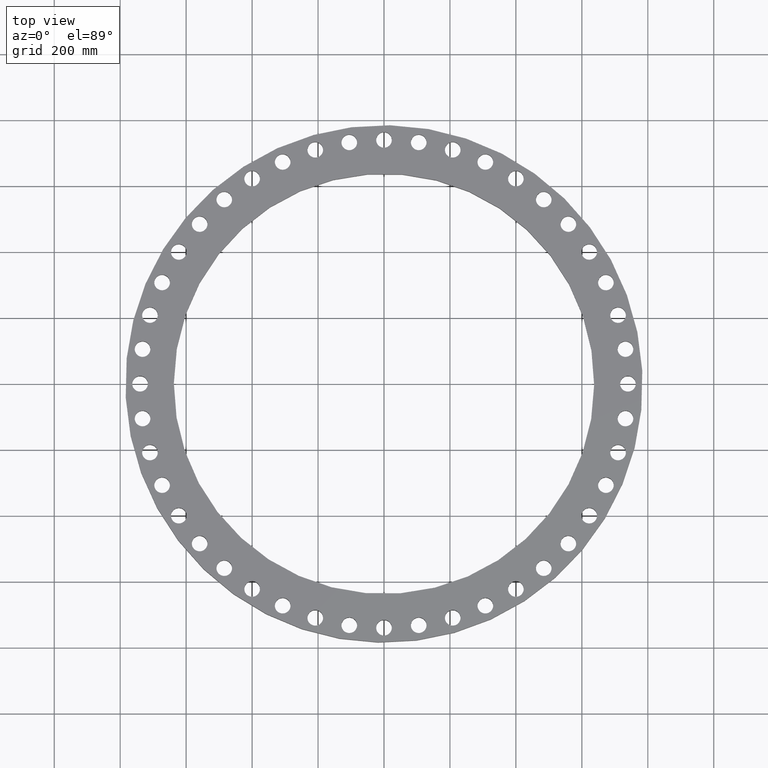
[diagram: clean part render]
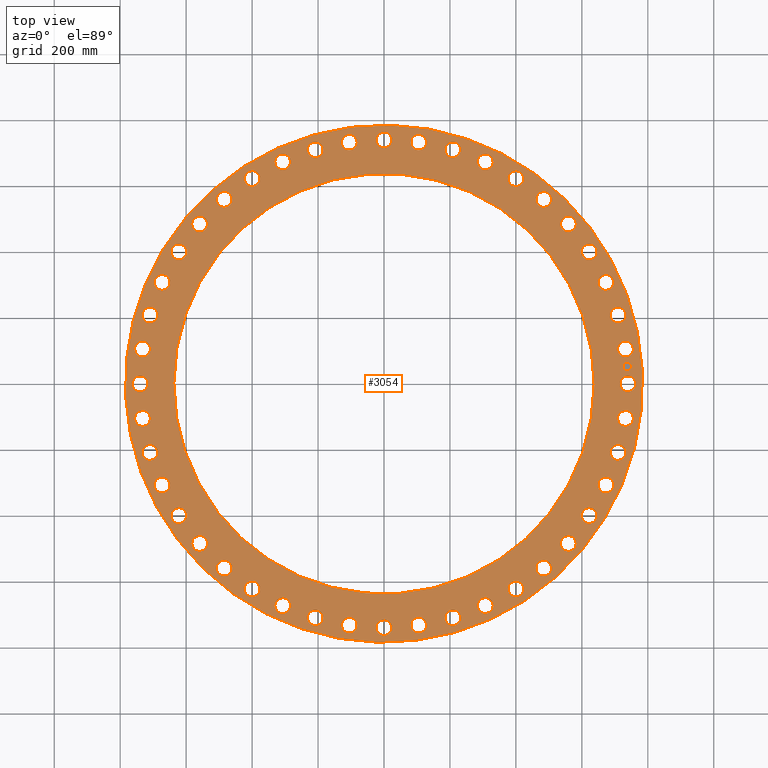
[diagram: same view with one face highlighted and labeled with its STEP entity id]
A machine part, top view. The second image highlights one B-rep face of the part: STEP entity #3054.
In plain terms, the highlighted planar face has unit normal (0, 0, 1).
Its self-contained STEP definition (entity closure, byte-faithful):
#65=AXIS2_PLACEMENT_3D('Circle Axis2P3D',#63,#64,$) ;
#82=AXIS2_PLACEMENT_3D('Circle Axis2P3D',#80,#81,$) ;
#108=AXIS2_PLACEMENT_3D('Circle Axis2P3D',#106,#107,$) ;
#134=AXIS2_PLACEMENT_3D('Circle Axis2P3D',#132,#133,$) ;
#179=AXIS2_PLACEMENT_3D('Circle Axis2P3D',#177,#178,$) ;
#196=AXIS2_PLACEMENT_3D('Circle Axis2P3D',#194,#195,$) ;
#1019=AXIS2_PLACEMENT_3D('Circle Axis2P3D',#1017,#1018,$) ;
#1031=AXIS2_PLACEMENT_3D('Circle Axis2P3D',#1029,#1030,$) ;
#1062=AXIS2_PLACEMENT_3D('Circle Axis2P3D',#1060,#1061,$) ;
#1074=AXIS2_PLACEMENT_3D('Circle Axis2P3D',#1072,#1073,$) ;
#1105=AXIS2_PLACEMENT_3D('Circle Axis2P3D',#1103,#1104,$) ;
#1117=AXIS2_PLACEMENT_3D('Circle Axis2P3D',#1115,#1116,$) ;
#1148=AXIS2_PLACEMENT_3D('Circle Axis2P3D',#1146,#1147,$) ;
#1160=AXIS2_PLACEMENT_3D('Circle Axis2P3D',#1158,#1159,$) ;
#1191=AXIS2_PLACEMENT_3D('Circle Axis2P3D',#1189,#1190,$) ;
#1203=AXIS2_PLACEMENT_3D('Circle Axis2P3D',#1201,#1202,$) ;
#1234=AXIS2_PLACEMENT_3D('Circle Axis2P3D',#1232,#1233,$) ;
#1246=AXIS2_PLACEMENT_3D('Circle Axis2P3D',#1244,#1245,$) ;
#1277=AXIS2_PLACEMENT_3D('Circle Axis2P3D',#1275,#1276,$) ;
#1289=AXIS2_PLACEMENT_3D('Circle Axis2P3D',#1287,#1288,$) ;
#1320=AXIS2_PLACEMENT_3D('Circle Axis2P3D',#1318,#1319,$) ;
#1332=AXIS2_PLACEMENT_3D('Circle Axis2P3D',#1330,#1331,$) ;
#1363=AXIS2_PLACEMENT_3D('Circle Axis2P3D',#1361,#1362,$) ;
#1375=AXIS2_PLACEMENT_3D('Circle Axis2P3D',#1373,#1374,$) ;
#1406=AXIS2_PLACEMENT_3D('Circle Axis2P3D',#1404,#1405,$) ;
#1418=AXIS2_PLACEMENT_3D('Circle Axis2P3D',#1416,#1417,$) ;
#1449=AXIS2_PLACEMENT_3D('Circle Axis2P3D',#1447,#1448,$) ;
#1461=AXIS2_PLACEMENT_3D('Circle Axis2P3D',#1459,#1460,$) ;
#1492=AXIS2_PLACEMENT_3D('Circle Axis2P3D',#1490,#1491,$) ;
#1504=AXIS2_PLACEMENT_3D('Circle Axis2P3D',#1502,#1503,$) ;
#1535=AXIS2_PLACEMENT_3D('Circle Axis2P3D',#1533,#1534,$) ;
#1547=AXIS2_PLACEMENT_3D('Circle Axis2P3D',#1545,#1546,$) ;
#1578=AXIS2_PLACEMENT_3D('Circle Axis2P3D',#1576,#1577,$) ;
#1590=AXIS2_PLACEMENT_3D('Circle Axis2P3D',#1588,#1589,$) ;
#1621=AXIS2_PLACEMENT_3D('Circle Axis2P3D',#1619,#1620,$) ;
#1633=AXIS2_PLACEMENT_3D('Circle Axis2P3D',#1631,#1632,$) ;
#1664=AXIS2_PLACEMENT_3D('Circle Axis2P3D',#1662,#1663,$) ;
#1676=AXIS2_PLACEMENT_3D('Circle Axis2P3D',#1674,#1675,$) ;
#1707=AXIS2_PLACEMENT_3D('Circle Axis2P3D',#1705,#1706,$) ;
#1719=AXIS2_PLACEMENT_3D('Circle Axis2P3D',#1717,#1718,$) ;
#1750=AXIS2_PLACEMENT_3D('Circle Axis2P3D',#1748,#1749,$) ;
#1762=AXIS2_PLACEMENT_3D('Circle Axis2P3D',#1760,#1761,$) ;
#1793=AXIS2_PLACEMENT_3D('Circle Axis2P3D',#1791,#1792,$) ;
#1805=AXIS2_PLACEMENT_3D('Circle Axis2P3D',#1803,#1804,$) ;
#1836=AXIS2_PLACEMENT_3D('Circle Axis2P3D',#1834,#1835,$) ;
#1848=AXIS2_PLACEMENT_3D('Circle Axis2P3D',#1846,#1847,$) ;
#1879=AXIS2_PLACEMENT_3D('Circle Axis2P3D',#1877,#1878,$) ;
#1891=AXIS2_PLACEMENT_3D('Circle Axis2P3D',#1889,#1890,$) ;
#1922=AXIS2_PLACEMENT_3D('Circle Axis2P3D',#1920,#1921,$) ;
#1934=AXIS2_PLACEMENT_3D('Circle Axis2P3D',#1932,#1933,$) ;
#1965=AXIS2_PLACEMENT_3D('Circle Axis2P3D',#1963,#1964,$) ;
#1977=AXIS2_PLACEMENT_3D('Circle Axis2P3D',#1975,#1976,$) ;
#2008=AXIS2_PLACEMENT_3D('Circle Axis2P3D',#2006,#2007,$) ;
#2020=AXIS2_PLACEMENT_3D('Circle Axis2P3D',#2018,#2019,$) ;
#2051=AXIS2_PLACEMENT_3D('Circle Axis2P3D',#2049,#2050,$) ;
#2063=AXIS2_PLACEMENT_3D('Circle Axis2P3D',#2061,#2062,$) ;
#2094=AXIS2_PLACEMENT_3D('Circle Axis2P3D',#2092,#2093,$) ;
#2106=AXIS2_PLACEMENT_3D('Circle Axis2P3D',#2104,#2105,$) ;
#2137=AXIS2_PLACEMENT_3D('Circle Axis2P3D',#2135,#2136,$) ;
#2149=AXIS2_PLACEMENT_3D('Circle Axis2P3D',#2147,#2148,$) ;
#2180=AXIS2_PLACEMENT_3D('Circle Axis2P3D',#2178,#2179,$) ;
#2192=AXIS2_PLACEMENT_3D('Circle Axis2P3D',#2190,#2191,$) ;
#2223=AXIS2_PLACEMENT_3D('Circle Axis2P3D',#2221,#2222,$) ;
#2235=AXIS2_PLACEMENT_3D('Circle Axis2P3D',#2233,#2234,$) ;
#2266=AXIS2_PLACEMENT_3D('Circle Axis2P3D',#2264,#2265,$) ;
#2278=AXIS2_PLACEMENT_3D('Circle Axis2P3D',#2276,#2277,$) ;
#2309=AXIS2_PLACEMENT_3D('Circle Axis2P3D',#2307,#2308,$) ;
#2321=AXIS2_PLACEMENT_3D('Circle Axis2P3D',#2319,#2320,$) ;
#2352=AXIS2_PLACEMENT_3D('Circle Axis2P3D',#2350,#2351,$) ;
#2364=AXIS2_PLACEMENT_3D('Circle Axis2P3D',#2362,#2363,$) ;
#2395=AXIS2_PLACEMENT_3D('Circle Axis2P3D',#2393,#2394,$) ;
#2407=AXIS2_PLACEMENT_3D('Circle Axis2P3D',#2405,#2406,$) ;
#2438=AXIS2_PLACEMENT_3D('Circle Axis2P3D',#2436,#2437,$) ;
#2450=AXIS2_PLACEMENT_3D('Circle Axis2P3D',#2448,#2449,$) ;
#2481=AXIS2_PLACEMENT_3D('Circle Axis2P3D',#2479,#2480,$) ;
#2493=AXIS2_PLACEMENT_3D('Circle Axis2P3D',#2491,#2492,$) ;
#2524=AXIS2_PLACEMENT_3D('Circle Axis2P3D',#2522,#2523,$) ;
#2536=AXIS2_PLACEMENT_3D('Circle Axis2P3D',#2534,#2535,$) ;
#2567=AXIS2_PLACEMENT_3D('Circle Axis2P3D',#2565,#2566,$) ;
#2579=AXIS2_PLACEMENT_3D('Circle Axis2P3D',#2577,#2578,$) ;
#2610=AXIS2_PLACEMENT_3D('Circle Axis2P3D',#2608,#2609,$) ;
#2622=AXIS2_PLACEMENT_3D('Circle Axis2P3D',#2620,#2621,$) ;
#2653=AXIS2_PLACEMENT_3D('Circle Axis2P3D',#2651,#2652,$) ;
#2665=AXIS2_PLACEMENT_3D('Circle Axis2P3D',#2663,#2664,$) ;
#2696=AXIS2_PLACEMENT_3D('Circle Axis2P3D',#2694,#2695,$) ;
#2708=AXIS2_PLACEMENT_3D('Circle Axis2P3D',#2706,#2707,$) ;
#2739=AXIS2_PLACEMENT_3D('Circle Axis2P3D',#2737,#2738,$) ;
#2751=AXIS2_PLACEMENT_3D('Circle Axis2P3D',#2749,#2750,$) ;
#2782=AXIS2_PLACEMENT_3D('Circle Axis2P3D',#2780,#2781,$) ;
#2794=AXIS2_PLACEMENT_3D('Circle Axis2P3D',#2792,#2793,$) ;
#2825=AXIS2_PLACEMENT_3D('Circle Axis2P3D',#2823,#2824,$) ;
#2837=AXIS2_PLACEMENT_3D('Circle Axis2P3D',#2835,#2836,$) ;
#2850=AXIS2_PLACEMENT_3D('Plane Axis2P3D',#2847,#2848,#2849) ;
#3038=AXIS2_PLACEMENT_3D('Circle Axis2P3D',#3036,#3037,$) ;
#3047=AXIS2_PLACEMENT_3D('Circle Axis2P3D',#3045,#3046,$) ;
#46=CARTESIAN_POINT('Vertex',(28.3022663483,0.449461442443,3.50000000001)) ;
#60=CARTESIAN_POINT('Vertex',(29.9477336519,-0.449461442443,3.50000000001)) ;
#63=CARTESIAN_POINT('Axis2P3D Location',(29.1250000001,0.,3.50000000001)) ;
#80=CARTESIAN_POINT('Axis2P3D Location',(29.1250000001,0.,3.50000000001)) ;
#103=CARTESIAN_POINT('Vertex',(27.0953615985,14.8022635045,3.50000000001)) ;
#106=CARTESIAN_POINT('Axis2P3D Location',(0.,0.,3.50000000001)) ;
#110=CARTESIAN_POINT('Vertex',(-27.0953615985,-14.8022635045,3.50000000001)) ;
#132=CARTESIAN_POINT('Axis2P3D Location',(0.,0.,3.50000000001)) ;
#160=CARTESIAN_POINT('Vertex',(-22.0229343907,12.0311838913,3.50000000001)) ;
#174=CARTESIAN_POINT('Vertex',(22.0229343907,-12.0311838913,3.50000000001)) ;
#177=CARTESIAN_POINT('Axis2P3D Location',(-6.64385432059E-016,-2.09805925913E-016,3.50000000001)) ;
#194=CARTESIAN_POINT('Axis2P3D Location',(-6.64385432059E-016,-2.09805925913E-016,3.50000000001)) ;
#1007=CARTESIAN_POINT('Vertex',(27.9502250529,4.47271903116,3.50000000001)) ;
#1014=CARTESIAN_POINT('Vertex',(29.7068739369,3.81712029829,3.50000000001)) ;
#1017=CARTESIAN_POINT('Axis2P3D Location',(28.8285494949,4.14491966473,3.50000000001)) ;
#1029=CARTESIAN_POINT('Axis2P3D Location',(28.8285494949,4.14491966473,3.50000000001)) ;
#1050=CARTESIAN_POINT('Vertex',(27.0291977772,8.40492495866,3.50000000001)) ;
#1057=CARTESIAN_POINT('Vertex',(28.861267936,8.00599647742,3.50000000001)) ;
#1060=CARTESIAN_POINT('Axis2P3D Location',(27.9452328566,8.20546071804,3.50000000001)) ;
#1072=CARTESIAN_POINT('Axis2P3D Location',(27.9452328566,8.20546071804,3.50000000001)) ;
#1093=CARTESIAN_POINT('Vertex',(25.5579339805,12.1660308518,3.50000000001)) ;
#1100=CARTESIAN_POINT('Vertex',(27.4281297491,12.0318936557,3.50000000001)) ;
#1103=CARTESIAN_POINT('Axis2P3D Location',(26.4930318648,12.0989622537,3.50000000001)) ;
#1115=CARTESIAN_POINT('Axis2P3D Location',(26.4930318648,12.0989622537,3.50000000001)) ;
#1136=CARTESIAN_POINT('Vertex',(23.566384351,15.6794714407,3.50000000001)) ;
#1143=CARTESIAN_POINT('Vertex',(25.4366339366,15.8128561762,3.50000000001)) ;
#1146=CARTESIAN_POINT('Axis2P3D Location',(24.5015091438,15.7461638085,3.50000000001)) ;
#1158=CARTESIAN_POINT('Axis2P3D Location',(24.5015091438,15.7461638085,3.50000000001)) ;
#1179=CARTESIAN_POINT('Vertex',(21.0950910959,18.873723207,3.50000000001)) ;
#1186=CARTESIAN_POINT('Vertex',(22.9273216104,19.2719145455,3.50000000001)) ;
#1189=CARTESIAN_POINT('Axis2P3D Location',(22.0112063532,19.0728188762,3.50000000001)) ;
#1201=CARTESIAN_POINT('Axis2P3D Location',(22.0112063532,19.0728188762,3.50000000001)) ;
#1222=CARTESIAN_POINT('Vertex',(18.1943626194,21.6837603961,3.50000000001)) ;
#1229=CARTESIAN_POINT('Vertex',(19.9512751331,22.3386523102,3.50000000001)) ;
#1232=CARTESIAN_POINT('Axis2P3D Location',(19.0728188762,22.0112063532,3.50000000001)) ;
#1244=CARTESIAN_POINT('Axis2P3D Location',(19.0728188762,22.0112063532,3.50000000001)) ;
#1265=CARTESIAN_POINT('Vertex',(14.9232493881,24.0523787543,3.50000000001)) ;
#1272=CARTESIAN_POINT('Vertex',(16.5690782288,24.9506395333,3.50000000001)) ;
#1275=CARTESIAN_POINT('Axis2P3D Location',(15.7461638085,24.5015091438,3.50000000001)) ;
#1287=CARTESIAN_POINT('Axis2P3D Location',(15.7461638085,24.5015091438,3.50000000001)) ;
#1308=CARTESIAN_POINT('Vertex',(11.3483418344,25.9313600425,3.50000000001)) ;
#1315=CARTESIAN_POINT('Vertex',(12.8495826731,27.0547036872,3.50000000001)) ;
#1318=CARTESIAN_POINT('Axis2P3D Location',(12.0989622537,26.4930318648,3.50000000001)) ;
#1330=CARTESIAN_POINT('Axis2P3D Location',(12.0989622537,26.4930318648,3.50000000001)) ;
#1351=CARTESIAN_POINT('Vertex',(7.54241476679,27.28245362,3.50000000001)) ;
#1358=CARTESIAN_POINT('Vertex',(8.86850666929,28.6080120933,3.50000000001)) ;
#1361=CARTESIAN_POINT('Axis2P3D Location',(8.20546071804,27.9452328566,3.50000000001)) ;
#1373=CARTESIAN_POINT('Axis2P3D Location',(8.20546071804,27.9452328566,3.50000000001)) ;
#1394=CARTESIAN_POINT('Vertex',(3.5829458851,28.0781551179,3.50000000001)) ;
#1401=CARTESIAN_POINT('Vertex',(4.70689344435,29.5789438719,3.50000000001)) ;
#1404=CARTESIAN_POINT('Axis2P3D Location',(4.14491966473,28.8285494949,3.50000000001)) ;
#1416=CARTESIAN_POINT('Axis2P3D Location',(4.14491966473,28.8285494949,3.50000000001)) ;
#1437=CARTESIAN_POINT('Vertex',(-0.449461442443,28.3022663483,3.50000000001)) ;
#1444=CARTESIAN_POINT('Vertex',(0.449461442443,29.9477336519,3.50000000001)) ;
#1447=CARTESIAN_POINT('Axis2P3D Location',(-2.69246785155E-015,29.1250000001,3.50000000001)) ;
#1459=CARTESIAN_POINT('Axis2P3D Location',(-2.69246785155E-015,29.1250000001,3.50000000001)) ;
#1480=CARTESIAN_POINT('Vertex',(-4.47271903116,27.9502250529,3.50000000001)) ;
#1487=CARTESIAN_POINT('Vertex',(-3.81712029829,29.7068739369,3.50000000001)) ;
#1490=CARTESIAN_POINT('Axis2P3D Location',(-4.14491966473,28.8285494949,3.50000000001)) ;
#1502=CARTESIAN_POINT('Axis2P3D Location',(-4.14491966473,28.8285494949,3.50000000001)) ;
#1523=CARTESIAN_POINT('Vertex',(-8.40492495866,27.0291977772,3.50000000001)) ;
#1530=CARTESIAN_POINT('Vertex',(-8.00599647742,28.861267936,3.50000000001)) ;
#1533=CARTESIAN_POINT('Axis2P3D Location',(-8.20546071804,27.9452328566,3.50000000001)) ;
#1545=CARTESIAN_POINT('Axis2P3D Location',(-8.20546071804,27.9452328566,3.50000000001)) ;
#1566=CARTESIAN_POINT('Vertex',(-12.1660308518,25.5579339805,3.50000000001)) ;
#1573=CARTESIAN_POINT('Vertex',(-12.0318936557,27.4281297491,3.50000000001)) ;
#1576=CARTESIAN_POINT('Axis2P3D Location',(-12.0989622537,26.4930318648,3.50000000001)) ;
#1588=CARTESIAN_POINT('Axis2P3D Location',(-12.0989622537,26.4930318648,3.50000000001)) ;
#1609=CARTESIAN_POINT('Vertex',(-15.6794714407,23.566384351,3.50000000001)) ;
#1616=CARTESIAN_POINT('Vertex',(-15.8128561762,25.4366339366,3.50000000001)) ;
#1619=CARTESIAN_POINT('Axis2P3D Location',(-15.7461638085,24.5015091438,3.50000000001)) ;
#1631=CARTESIAN_POINT('Axis2P3D Location',(-15.7461638085,24.5015091438,3.50000000001)) ;
#1652=CARTESIAN_POINT('Vertex',(-18.873723207,21.0950910959,3.50000000001)) ;
#1659=CARTESIAN_POINT('Vertex',(-19.2719145455,22.9273216104,3.50000000001)) ;
#1662=CARTESIAN_POINT('Axis2P3D Location',(-19.0728188762,22.0112063532,3.50000000001)) ;
#1674=CARTESIAN_POINT('Axis2P3D Location',(-19.0728188762,22.0112063532,3.50000000001)) ;
#1695=CARTESIAN_POINT('Vertex',(-21.6837603961,18.1943626194,3.50000000001)) ;
#1702=CARTESIAN_POINT('Vertex',(-22.3386523102,19.9512751331,3.50000000001)) ;
#1705=CARTESIAN_POINT('Axis2P3D Location',(-22.0112063532,19.0728188762,3.50000000001)) ;
#1717=CARTESIAN_POINT('Axis2P3D Location',(-22.0112063532,19.0728188762,3.50000000001)) ;
#1738=CARTESIAN_POINT('Vertex',(-24.0523787543,14.9232493881,3.50000000001)) ;
#1745=CARTESIAN_POINT('Vertex',(-24.9506395333,16.5690782288,3.50000000001)) ;
#1748=CARTESIAN_POINT('Axis2P3D Location',(-24.5015091438,15.7461638085,3.50000000001)) ;
#1760=CARTESIAN_POINT('Axis2P3D Location',(-24.5015091438,15.7461638085,3.50000000001)) ;
#1781=CARTESIAN_POINT('Vertex',(-25.9313600425,11.3483418344,3.50000000001)) ;
#1788=CARTESIAN_POINT('Vertex',(-27.0547036872,12.8495826731,3.50000000001)) ;
#1791=CARTESIAN_POINT('Axis2P3D Location',(-26.4930318648,12.0989622537,3.50000000001)) ;
#1803=CARTESIAN_POINT('Axis2P3D Location',(-26.4930318648,12.0989622537,3.50000000001)) ;
#1824=CARTESIAN_POINT('Vertex',(-27.28245362,7.54241476679,3.50000000001)) ;
#1831=CARTESIAN_POINT('Vertex',(-28.6080120933,8.86850666929,3.50000000001)) ;
#1834=CARTESIAN_POINT('Axis2P3D Location',(-27.9452328566,8.20546071804,3.50000000001)) ;
#1846=CARTESIAN_POINT('Axis2P3D Location',(-27.9452328566,8.20546071804,3.50000000001)) ;
#1867=CARTESIAN_POINT('Vertex',(-28.0781551179,3.5829458851,3.50000000001)) ;
#1874=CARTESIAN_POINT('Vertex',(-29.5789438719,4.70689344435,3.50000000001)) ;
#1877=CARTESIAN_POINT('Axis2P3D Location',(-28.8285494949,4.14491966473,3.50000000001)) ;
#1889=CARTESIAN_POINT('Axis2P3D Location',(-28.8285494949,4.14491966473,3.50000000001)) ;
#1910=CARTESIAN_POINT('Vertex',(-28.3022663483,-0.449461442443,3.50000000001)) ;
#1917=CARTESIAN_POINT('Vertex',(-29.9477336519,0.449461442443,3.50000000001)) ;
#1920=CARTESIAN_POINT('Axis2P3D Location',(-29.1250000001,3.56678380253E-015,3.50000000001)) ;
#1932=CARTESIAN_POINT('Axis2P3D Location',(-29.1250000001,3.56678380253E-015,3.50000000001)) ;
#1953=CARTESIAN_POINT('Vertex',(-27.9502250529,-4.47271903116,3.50000000001)) ;
#1960=CARTESIAN_POINT('Vertex',(-29.7068739369,-3.81712029829,3.50000000001)) ;
#1963=CARTESIAN_POINT('Axis2P3D Location',(-28.8285494949,-4.14491966473,3.50000000001)) ;
#1975=CARTESIAN_POINT('Axis2P3D Location',(-28.8285494949,-4.14491966473,3.50000000001)) ;
#1996=CARTESIAN_POINT('Vertex',(-27.0291977772,-8.40492495866,3.50000000001)) ;
#2003=CARTESIAN_POINT('Vertex',(-28.861267936,-8.00599647742,3.50000000001)) ;
#2006=CARTESIAN_POINT('Axis2P3D Location',(-27.9452328566,-8.20546071804,3.50000000001)) ;
#2018=CARTESIAN_POINT('Axis2P3D Location',(-27.9452328566,-8.20546071804,3.50000000001)) ;
#2039=CARTESIAN_POINT('Vertex',(-25.5579339805,-12.1660308518,3.50000000001)) ;
#2046=CARTESIAN_POINT('Vertex',(-27.4281297491,-12.0318936557,3.50000000001)) ;
#2049=CARTESIAN_POINT('Axis2P3D Location',(-26.4930318648,-12.0989622537,3.50000000001)) ;
#2061=CARTESIAN_POINT('Axis2P3D Location',(-26.4930318648,-12.0989622537,3.50000000001)) ;
#2082=CARTESIAN_POINT('Vertex',(-23.566384351,-15.6794714407,3.50000000001)) ;
#2089=CARTESIAN_POINT('Vertex',(-25.4366339366,-15.8128561762,3.50000000001)) ;
#2092=CARTESIAN_POINT('Axis2P3D Location',(-24.5015091438,-15.7461638085,3.50000000001)) ;
#2104=CARTESIAN_POINT('Axis2P3D Location',(-24.5015091438,-15.7461638085,3.50000000001)) ;
#2125=CARTESIAN_POINT('Vertex',(-21.0950910959,-18.873723207,3.50000000001)) ;
#2132=CARTESIAN_POINT('Vertex',(-22.9273216104,-19.2719145455,3.50000000001)) ;
#2135=CARTESIAN_POINT('Axis2P3D Location',(-22.0112063532,-19.0728188762,3.50000000001)) ;
#2147=CARTESIAN_POINT('Axis2P3D Location',(-22.0112063532,-19.0728188762,3.50000000001)) ;
#2168=CARTESIAN_POINT('Vertex',(-18.1943626194,-21.6837603961,3.50000000001)) ;
#2175=CARTESIAN_POINT('Vertex',(-19.9512751331,-22.3386523102,3.50000000001)) ;
#2178=CARTESIAN_POINT('Axis2P3D Location',(-19.0728188762,-22.0112063532,3.50000000001)) ;
#2190=CARTESIAN_POINT('Axis2P3D Location',(-19.0728188762,-22.0112063532,3.50000000001)) ;
#2211=CARTESIAN_POINT('Vertex',(-14.9232493881,-24.0523787543,3.50000000001)) ;
#2218=CARTESIAN_POINT('Vertex',(-16.5690782288,-24.9506395333,3.50000000001)) ;
#2221=CARTESIAN_POINT('Axis2P3D Location',(-15.7461638085,-24.5015091438,3.50000000001)) ;
#2233=CARTESIAN_POINT('Axis2P3D Location',(-15.7461638085,-24.5015091438,3.50000000001)) ;
#2254=CARTESIAN_POINT('Vertex',(-11.3483418344,-25.9313600425,3.50000000001)) ;
#2261=CARTESIAN_POINT('Vertex',(-12.8495826731,-27.0547036872,3.50000000001)) ;
#2264=CARTESIAN_POINT('Axis2P3D Location',(-12.0989622537,-26.4930318648,3.50000000001)) ;
#2276=CARTESIAN_POINT('Axis2P3D Location',(-12.0989622537,-26.4930318648,3.50000000001)) ;
#2297=CARTESIAN_POINT('Vertex',(-7.54241476679,-27.28245362,3.50000000001)) ;
#2304=CARTESIAN_POINT('Vertex',(-8.86850666929,-28.6080120933,3.50000000001)) ;
#2307=CARTESIAN_POINT('Axis2P3D Location',(-8.20546071804,-27.9452328566,3.50000000001)) ;
#2319=CARTESIAN_POINT('Axis2P3D Location',(-8.20546071804,-27.9452328566,3.50000000001)) ;
#2340=CARTESIAN_POINT('Vertex',(-3.5829458851,-28.0781551179,3.50000000001)) ;
#2347=CARTESIAN_POINT('Vertex',(-4.70689344435,-29.5789438719,3.50000000001)) ;
#2350=CARTESIAN_POINT('Axis2P3D Location',(-4.14491966473,-28.8285494949,3.50000000001)) ;
#2362=CARTESIAN_POINT('Axis2P3D Location',(-4.14491966473,-28.8285494949,3.50000000001)) ;
#2383=CARTESIAN_POINT('Vertex',(0.449461442443,-28.3022663483,3.50000000001)) ;
#2390=CARTESIAN_POINT('Vertex',(-0.449461442443,-29.9477336519,3.50000000001)) ;
#2393=CARTESIAN_POINT('Axis2P3D Location',(-5.3501757038E-015,-29.1250000001,3.50000000001)) ;
#2405=CARTESIAN_POINT('Axis2P3D Location',(-5.3501757038E-015,-29.1250000001,3.50000000001)) ;
#2426=CARTESIAN_POINT('Vertex',(4.47271903116,-27.9502250529,3.50000000001)) ;
#2433=CARTESIAN_POINT('Vertex',(3.81712029829,-29.7068739369,3.50000000001)) ;
#2436=CARTESIAN_POINT('Axis2P3D Location',(4.14491966473,-28.8285494949,3.50000000001)) ;
#2448=CARTESIAN_POINT('Axis2P3D Location',(4.14491966473,-28.8285494949,3.50000000001)) ;
#2469=CARTESIAN_POINT('Vertex',(8.40492495866,-27.0291977772,3.50000000001)) ;
#2476=CARTESIAN_POINT('Vertex',(8.00599647742,-28.861267936,3.50000000001)) ;
#2479=CARTESIAN_POINT('Axis2P3D Location',(8.20546071804,-27.9452328566,3.50000000001)) ;
#2491=CARTESIAN_POINT('Axis2P3D Location',(8.20546071804,-27.9452328566,3.50000000001)) ;
#2512=CARTESIAN_POINT('Vertex',(12.1660308518,-25.5579339805,3.50000000001)) ;
#2519=CARTESIAN_POINT('Vertex',(12.0318936557,-27.4281297491,3.50000000001)) ;
#2522=CARTESIAN_POINT('Axis2P3D Location',(12.0989622537,-26.4930318648,3.50000000001)) ;
#2534=CARTESIAN_POINT('Axis2P3D Location',(12.0989622537,-26.4930318648,3.50000000001)) ;
#2555=CARTESIAN_POINT('Vertex',(15.6794714407,-23.566384351,3.50000000001)) ;
#2562=CARTESIAN_POINT('Vertex',(15.8128561762,-25.4366339366,3.50000000001)) ;
#2565=CARTESIAN_POINT('Axis2P3D Location',(15.7461638085,-24.5015091438,3.50000000001)) ;
#2577=CARTESIAN_POINT('Axis2P3D Location',(15.7461638085,-24.5015091438,3.50000000001)) ;
#2598=CARTESIAN_POINT('Vertex',(18.873723207,-21.0950910959,3.50000000001)) ;
#2605=CARTESIAN_POINT('Vertex',(19.2719145455,-22.9273216104,3.50000000001)) ;
#2608=CARTESIAN_POINT('Axis2P3D Location',(19.0728188762,-22.0112063532,3.50000000001)) ;
#2620=CARTESIAN_POINT('Axis2P3D Location',(19.0728188762,-22.0112063532,3.50000000001)) ;
#2641=CARTESIAN_POINT('Vertex',(21.6837603961,-18.1943626194,3.50000000001)) ;
#2648=CARTESIAN_POINT('Vertex',(22.3386523102,-19.9512751331,3.50000000001)) ;
#2651=CARTESIAN_POINT('Axis2P3D Location',(22.0112063532,-19.0728188762,3.50000000001)) ;
#2663=CARTESIAN_POINT('Axis2P3D Location',(22.0112063532,-19.0728188762,3.50000000001)) ;
#2684=CARTESIAN_POINT('Vertex',(24.0523787543,-14.9232493881,3.50000000001)) ;
#2691=CARTESIAN_POINT('Vertex',(24.9506395333,-16.5690782288,3.50000000001)) ;
#2694=CARTESIAN_POINT('Axis2P3D Location',(24.5015091438,-15.7461638085,3.50000000001)) ;
#2706=CARTESIAN_POINT('Axis2P3D Location',(24.5015091438,-15.7461638085,3.50000000001)) ;
#2727=CARTESIAN_POINT('Vertex',(25.9313600425,-11.3483418344,3.50000000001)) ;
#2734=CARTESIAN_POINT('Vertex',(27.0547036872,-12.8495826731,3.50000000001)) ;
#2737=CARTESIAN_POINT('Axis2P3D Location',(26.4930318648,-12.0989622537,3.50000000001)) ;
#2749=CARTESIAN_POINT('Axis2P3D Location',(26.4930318648,-12.0989622537,3.50000000001)) ;
#2770=CARTESIAN_POINT('Vertex',(27.28245362,-7.54241476679,3.50000000001)) ;
#2777=CARTESIAN_POINT('Vertex',(28.6080120933,-8.86850666929,3.50000000001)) ;
#2780=CARTESIAN_POINT('Axis2P3D Location',(27.9452328566,-8.20546071804,3.50000000001)) ;
#2792=CARTESIAN_POINT('Axis2P3D Location',(27.9452328566,-8.20546071804,3.50000000001)) ;
#2813=CARTESIAN_POINT('Vertex',(28.0781551179,-3.5829458851,3.50000000001)) ;
#2820=CARTESIAN_POINT('Vertex',(29.5789438719,-4.70689344435,3.50000000001)) ;
#2823=CARTESIAN_POINT('Axis2P3D Location',(28.8285494949,-4.14491966473,3.50000000001)) ;
#2835=CARTESIAN_POINT('Axis2P3D Location',(28.8285494949,-4.14491966473,3.50000000001)) ;
#2847=CARTESIAN_POINT('Axis2P3D Location',(30.8750000001,0.,3.50000000001)) ;
#3036=CARTESIAN_POINT('Axis2P3D Location',(29.0507928381,2.07775371069,3.50000000001)) ;
#3040=CARTESIAN_POINT('Vertex',(29.0151232469,2.57647976301,3.50000000001)) ;
#3042=CARTESIAN_POINT('Vertex',(29.0864624294,1.57902765837,3.50000000001)) ;
#3045=CARTESIAN_POINT('Axis2P3D Location',(29.0507928381,2.07775371069,3.50000000001)) ;
#64=DIRECTION('Axis2P3D Direction',(0.,-0.,-0.0393700787402)) ;
#81=DIRECTION('Axis2P3D Direction',(0.,-0.,-0.0393700787402)) ;
#107=DIRECTION('Axis2P3D Direction',(0.,0.,0.0393700787402)) ;
#133=DIRECTION('Axis2P3D Direction',(0.,0.,0.0393700787402)) ;
#178=DIRECTION('Axis2P3D Direction',(0.,-0.,-0.0393700787402)) ;
#195=DIRECTION('Axis2P3D Direction',(0.,-0.,-0.0393700787402)) ;
#1018=DIRECTION('Axis2P3D Direction',(0.,0.,-0.0393700787402)) ;
#1030=DIRECTION('Axis2P3D Direction',(0.,0.,-0.0393700787402)) ;
#1061=DIRECTION('Axis2P3D Direction',(0.,0.,-0.0393700787402)) ;
#1073=DIRECTION('Axis2P3D Direction',(0.,0.,-0.0393700787402)) ;
#1104=DIRECTION('Axis2P3D Direction',(0.,0.,-0.0393700787402)) ;
#1116=DIRECTION('Axis2P3D Direction',(0.,0.,-0.0393700787402)) ;
#1147=DIRECTION('Axis2P3D Direction',(0.,0.,-0.0393700787402)) ;
#1159=DIRECTION('Axis2P3D Direction',(0.,0.,-0.0393700787402)) ;
#1190=DIRECTION('Axis2P3D Direction',(0.,0.,-0.0393700787402)) ;
#1202=DIRECTION('Axis2P3D Direction',(0.,0.,-0.0393700787402)) ;
#1233=DIRECTION('Axis2P3D Direction',(0.,0.,-0.0393700787402)) ;
#1245=DIRECTION('Axis2P3D Direction',(0.,0.,-0.0393700787402)) ;
#1276=DIRECTION('Axis2P3D Direction',(0.,0.,-0.0393700787402)) ;
#1288=DIRECTION('Axis2P3D Direction',(0.,0.,-0.0393700787402)) ;
#1319=DIRECTION('Axis2P3D Direction',(0.,0.,-0.0393700787402)) ;
#1331=DIRECTION('Axis2P3D Direction',(0.,0.,-0.0393700787402)) ;
#1362=DIRECTION('Axis2P3D Direction',(0.,0.,-0.0393700787402)) ;
#1374=DIRECTION('Axis2P3D Direction',(0.,0.,-0.0393700787402)) ;
#1405=DIRECTION('Axis2P3D Direction',(0.,0.,-0.0393700787402)) ;
#1417=DIRECTION('Axis2P3D Direction',(0.,0.,-0.0393700787402)) ;
#1448=DIRECTION('Axis2P3D Direction',(0.,0.,-0.0393700787402)) ;
#1460=DIRECTION('Axis2P3D Direction',(0.,0.,-0.0393700787402)) ;
#1491=DIRECTION('Axis2P3D Direction',(0.,0.,-0.0393700787402)) ;
#1503=DIRECTION('Axis2P3D Direction',(0.,0.,-0.0393700787402)) ;
#1534=DIRECTION('Axis2P3D Direction',(0.,0.,-0.0393700787402)) ;
#1546=DIRECTION('Axis2P3D Direction',(0.,0.,-0.0393700787402)) ;
#1577=DIRECTION('Axis2P3D Direction',(0.,0.,-0.0393700787402)) ;
#1589=DIRECTION('Axis2P3D Direction',(0.,0.,-0.0393700787402)) ;
#1620=DIRECTION('Axis2P3D Direction',(0.,0.,-0.0393700787402)) ;
#1632=DIRECTION('Axis2P3D Direction',(0.,0.,-0.0393700787402)) ;
#1663=DIRECTION('Axis2P3D Direction',(0.,0.,-0.0393700787402)) ;
#1675=DIRECTION('Axis2P3D Direction',(0.,0.,-0.0393700787402)) ;
#1706=DIRECTION('Axis2P3D Direction',(0.,0.,-0.0393700787402)) ;
#1718=DIRECTION('Axis2P3D Direction',(0.,0.,-0.0393700787402)) ;
#1749=DIRECTION('Axis2P3D Direction',(0.,0.,-0.0393700787402)) ;
#1761=DIRECTION('Axis2P3D Direction',(0.,0.,-0.0393700787402)) ;
#1792=DIRECTION('Axis2P3D Direction',(0.,0.,-0.0393700787402)) ;
#1804=DIRECTION('Axis2P3D Direction',(0.,0.,-0.0393700787402)) ;
#1835=DIRECTION('Axis2P3D Direction',(0.,0.,-0.0393700787402)) ;
#1847=DIRECTION('Axis2P3D Direction',(0.,0.,-0.0393700787402)) ;
#1878=DIRECTION('Axis2P3D Direction',(0.,0.,-0.0393700787402)) ;
#1890=DIRECTION('Axis2P3D Direction',(0.,0.,-0.0393700787402)) ;
#1921=DIRECTION('Axis2P3D Direction',(0.,0.,-0.0393700787402)) ;
#1933=DIRECTION('Axis2P3D Direction',(0.,0.,-0.0393700787402)) ;
#1964=DIRECTION('Axis2P3D Direction',(-0.,0.,-0.0393700787402)) ;
#1976=DIRECTION('Axis2P3D Direction',(-0.,0.,-0.0393700787402)) ;
#2007=DIRECTION('Axis2P3D Direction',(-0.,0.,-0.0393700787402)) ;
#2019=DIRECTION('Axis2P3D Direction',(-0.,0.,-0.0393700787402)) ;
#2050=DIRECTION('Axis2P3D Direction',(-0.,0.,-0.0393700787402)) ;
#2062=DIRECTION('Axis2P3D Direction',(-0.,0.,-0.0393700787402)) ;
#2093=DIRECTION('Axis2P3D Direction',(-0.,0.,-0.0393700787402)) ;
#2105=DIRECTION('Axis2P3D Direction',(-0.,0.,-0.0393700787402)) ;
#2136=DIRECTION('Axis2P3D Direction',(-0.,0.,-0.0393700787402)) ;
#2148=DIRECTION('Axis2P3D Direction',(-0.,0.,-0.0393700787402)) ;
#2179=DIRECTION('Axis2P3D Direction',(-0.,0.,-0.0393700787402)) ;
#2191=DIRECTION('Axis2P3D Direction',(-0.,0.,-0.0393700787402)) ;
#2222=DIRECTION('Axis2P3D Direction',(-0.,0.,-0.0393700787402)) ;
#2234=DIRECTION('Axis2P3D Direction',(-0.,0.,-0.0393700787402)) ;
#2265=DIRECTION('Axis2P3D Direction',(-0.,0.,-0.0393700787402)) ;
#2277=DIRECTION('Axis2P3D Direction',(-0.,0.,-0.0393700787402)) ;
#2308=DIRECTION('Axis2P3D Direction',(-0.,0.,-0.0393700787402)) ;
#2320=DIRECTION('Axis2P3D Direction',(-0.,0.,-0.0393700787402)) ;
#2351=DIRECTION('Axis2P3D Direction',(-0.,0.,-0.0393700787402)) ;
#2363=DIRECTION('Axis2P3D Direction',(-0.,0.,-0.0393700787402)) ;
#2394=DIRECTION('Axis2P3D Direction',(-0.,0.,-0.0393700787402)) ;
#2406=DIRECTION('Axis2P3D Direction',(-0.,0.,-0.0393700787402)) ;
#2437=DIRECTION('Axis2P3D Direction',(0.,-0.,-0.0393700787402)) ;
#2449=DIRECTION('Axis2P3D Direction',(0.,-0.,-0.0393700787402)) ;
#2480=DIRECTION('Axis2P3D Direction',(0.,-0.,-0.0393700787402)) ;
#2492=DIRECTION('Axis2P3D Direction',(0.,-0.,-0.0393700787402)) ;
#2523=DIRECTION('Axis2P3D Direction',(0.,-0.,-0.0393700787402)) ;
#2535=DIRECTION('Axis2P3D Direction',(0.,-0.,-0.0393700787402)) ;
#2566=DIRECTION('Axis2P3D Direction',(0.,-0.,-0.0393700787402)) ;
#2578=DIRECTION('Axis2P3D Direction',(0.,-0.,-0.0393700787402)) ;
#2609=DIRECTION('Axis2P3D Direction',(0.,-0.,-0.0393700787402)) ;
#2621=DIRECTION('Axis2P3D Direction',(0.,-0.,-0.0393700787402)) ;
#2652=DIRECTION('Axis2P3D Direction',(0.,-0.,-0.0393700787402)) ;
#2664=DIRECTION('Axis2P3D Direction',(0.,-0.,-0.0393700787402)) ;
#2695=DIRECTION('Axis2P3D Direction',(0.,-0.,-0.0393700787402)) ;
#2707=DIRECTION('Axis2P3D Direction',(0.,-0.,-0.0393700787402)) ;
#2738=DIRECTION('Axis2P3D Direction',(0.,-0.,-0.0393700787402)) ;
#2750=DIRECTION('Axis2P3D Direction',(0.,-0.,-0.0393700787402)) ;
#2781=DIRECTION('Axis2P3D Direction',(0.,-0.,-0.0393700787402)) ;
#2793=DIRECTION('Axis2P3D Direction',(0.,-0.,-0.0393700787402)) ;
#2824=DIRECTION('Axis2P3D Direction',(0.,-0.,-0.0393700787402)) ;
#2836=DIRECTION('Axis2P3D Direction',(0.,-0.,-0.0393700787402)) ;
#2848=DIRECTION('Axis2P3D Direction',(0.,0.,0.0393700787402)) ;
#2849=DIRECTION('Axis2P3D XDirection',(0.0393700787402,0.,0.)) ;
#3037=DIRECTION('Axis2P3D Direction',(0.,0.,0.0393700787402)) ;
#3046=DIRECTION('Axis2P3D Direction',(0.,0.,0.0393700787402)) ;
#2853=ORIENTED_EDGE('',*,*,#112,.T.) ;
#2854=ORIENTED_EDGE('',*,*,#136,.T.) ;
#2857=ORIENTED_EDGE('',*,*,#84,.F.) ;
#2858=ORIENTED_EDGE('',*,*,#67,.F.) ;
#2861=ORIENTED_EDGE('',*,*,#198,.F.) ;
#2862=ORIENTED_EDGE('',*,*,#181,.F.) ;
#2865=ORIENTED_EDGE('',*,*,#1021,.F.) ;
#2866=ORIENTED_EDGE('',*,*,#1033,.F.) ;
#2869=ORIENTED_EDGE('',*,*,#1064,.F.) ;
#2870=ORIENTED_EDGE('',*,*,#1076,.F.) ;
#2873=ORIENTED_EDGE('',*,*,#1107,.F.) ;
#2874=ORIENTED_EDGE('',*,*,#1119,.F.) ;
#2877=ORIENTED_EDGE('',*,*,#1150,.F.) ;
#2878=ORIENTED_EDGE('',*,*,#1162,.F.) ;
#2881=ORIENTED_EDGE('',*,*,#1193,.F.) ;
#2882=ORIENTED_EDGE('',*,*,#1205,.F.) ;
#2885=ORIENTED_EDGE('',*,*,#1236,.F.) ;
#2886=ORIENTED_EDGE('',*,*,#1248,.F.) ;
#2889=ORIENTED_EDGE('',*,*,#1279,.F.) ;
#2890=ORIENTED_EDGE('',*,*,#1291,.F.) ;
#2893=ORIENTED_EDGE('',*,*,#1322,.F.) ;
#2894=ORIENTED_EDGE('',*,*,#1334,.F.) ;
#2897=ORIENTED_EDGE('',*,*,#1365,.F.) ;
#2898=ORIENTED_EDGE('',*,*,#1377,.F.) ;
#2901=ORIENTED_EDGE('',*,*,#1408,.F.) ;
#2902=ORIENTED_EDGE('',*,*,#1420,.F.) ;
#2905=ORIENTED_EDGE('',*,*,#1451,.F.) ;
#2906=ORIENTED_EDGE('',*,*,#1463,.F.) ;
#2909=ORIENTED_EDGE('',*,*,#1494,.F.) ;
#2910=ORIENTED_EDGE('',*,*,#1506,.F.) ;
#2913=ORIENTED_EDGE('',*,*,#1537,.F.) ;
#2914=ORIENTED_EDGE('',*,*,#1549,.F.) ;
#2917=ORIENTED_EDGE('',*,*,#1580,.F.) ;
#2918=ORIENTED_EDGE('',*,*,#1592,.F.) ;
#2921=ORIENTED_EDGE('',*,*,#1623,.F.) ;
#2922=ORIENTED_EDGE('',*,*,#1635,.F.) ;
#2925=ORIENTED_EDGE('',*,*,#1666,.F.) ;
#2926=ORIENTED_EDGE('',*,*,#1678,.F.) ;
#2929=ORIENTED_EDGE('',*,*,#1709,.F.) ;
#2930=ORIENTED_EDGE('',*,*,#1721,.F.) ;
#2933=ORIENTED_EDGE('',*,*,#1752,.F.) ;
#2934=ORIENTED_EDGE('',*,*,#1764,.F.) ;
#2937=ORIENTED_EDGE('',*,*,#1795,.F.) ;
#2938=ORIENTED_EDGE('',*,*,#1807,.F.) ;
#2941=ORIENTED_EDGE('',*,*,#1838,.F.) ;
#2942=ORIENTED_EDGE('',*,*,#1850,.F.) ;
#2945=ORIENTED_EDGE('',*,*,#1881,.F.) ;
#2946=ORIENTED_EDGE('',*,*,#1893,.F.) ;
#2949=ORIENTED_EDGE('',*,*,#1924,.F.) ;
#2950=ORIENTED_EDGE('',*,*,#1936,.F.) ;
#2953=ORIENTED_EDGE('',*,*,#1967,.F.) ;
#2954=ORIENTED_EDGE('',*,*,#1979,.F.) ;
#2957=ORIENTED_EDGE('',*,*,#2010,.F.) ;
#2958=ORIENTED_EDGE('',*,*,#2022,.F.) ;
#2961=ORIENTED_EDGE('',*,*,#2053,.F.) ;
#2962=ORIENTED_EDGE('',*,*,#2065,.F.) ;
#2965=ORIENTED_EDGE('',*,*,#2096,.F.) ;
#2966=ORIENTED_EDGE('',*,*,#2108,.F.) ;
#2969=ORIENTED_EDGE('',*,*,#2139,.F.) ;
#2970=ORIENTED_EDGE('',*,*,#2151,.F.) ;
#2973=ORIENTED_EDGE('',*,*,#2182,.F.) ;
#2974=ORIENTED_EDGE('',*,*,#2194,.F.) ;
#2977=ORIENTED_EDGE('',*,*,#2225,.F.) ;
#2978=ORIENTED_EDGE('',*,*,#2237,.F.) ;
#2981=ORIENTED_EDGE('',*,*,#2268,.F.) ;
#2982=ORIENTED_EDGE('',*,*,#2280,.F.) ;
#2985=ORIENTED_EDGE('',*,*,#2311,.F.) ;
#2986=ORIENTED_EDGE('',*,*,#2323,.F.) ;
#2989=ORIENTED_EDGE('',*,*,#2354,.F.) ;
#2990=ORIENTED_EDGE('',*,*,#2366,.F.) ;
#2993=ORIENTED_EDGE('',*,*,#2397,.F.) ;
#2994=ORIENTED_EDGE('',*,*,#2409,.F.) ;
#2997=ORIENTED_EDGE('',*,*,#2440,.F.) ;
#2998=ORIENTED_EDGE('',*,*,#2452,.F.) ;
#3001=ORIENTED_EDGE('',*,*,#2483,.F.) ;
#3002=ORIENTED_EDGE('',*,*,#2495,.F.) ;
#3005=ORIENTED_EDGE('',*,*,#2526,.F.) ;
#3006=ORIENTED_EDGE('',*,*,#2538,.F.) ;
#3009=ORIENTED_EDGE('',*,*,#2569,.F.) ;
#3010=ORIENTED_EDGE('',*,*,#2581,.F.) ;
#3013=ORIENTED_EDGE('',*,*,#2612,.F.) ;
#3014=ORIENTED_EDGE('',*,*,#2624,.F.) ;
#3017=ORIENTED_EDGE('',*,*,#2655,.F.) ;
#3018=ORIENTED_EDGE('',*,*,#2667,.F.) ;
#3021=ORIENTED_EDGE('',*,*,#2698,.F.) ;
#3022=ORIENTED_EDGE('',*,*,#2710,.F.) ;
#3025=ORIENTED_EDGE('',*,*,#2741,.F.) ;
#3026=ORIENTED_EDGE('',*,*,#2753,.F.) ;
#3029=ORIENTED_EDGE('',*,*,#2784,.F.) ;
#3030=ORIENTED_EDGE('',*,*,#2796,.F.) ;
#3033=ORIENTED_EDGE('',*,*,#2827,.F.) ;
#3034=ORIENTED_EDGE('',*,*,#2839,.F.) ;
#3051=ORIENTED_EDGE('',*,*,#3044,.F.) ;
#3052=ORIENTED_EDGE('',*,*,#3049,.F.) ;
#2859=FACE_BOUND('',#2856,.T.) ;
#2863=FACE_BOUND('',#2860,.T.) ;
#2867=FACE_BOUND('',#2864,.T.) ;
#2871=FACE_BOUND('',#2868,.T.) ;
#2875=FACE_BOUND('',#2872,.T.) ;
#2879=FACE_BOUND('',#2876,.T.) ;
#2883=FACE_BOUND('',#2880,.T.) ;
#2887=FACE_BOUND('',#2884,.T.) ;
#2891=FACE_BOUND('',#2888,.T.) ;
#2895=FACE_BOUND('',#2892,.T.) ;
#2899=FACE_BOUND('',#2896,.T.) ;
#2903=FACE_BOUND('',#2900,.T.) ;
#2907=FACE_BOUND('',#2904,.T.) ;
#2911=FACE_BOUND('',#2908,.T.) ;
#2915=FACE_BOUND('',#2912,.T.) ;
#2919=FACE_BOUND('',#2916,.T.) ;
#2923=FACE_BOUND('',#2920,.T.) ;
#2927=FACE_BOUND('',#2924,.T.) ;
#2931=FACE_BOUND('',#2928,.T.) ;
#2935=FACE_BOUND('',#2932,.T.) ;
#2939=FACE_BOUND('',#2936,.T.) ;
#2943=FACE_BOUND('',#2940,.T.) ;
#2947=FACE_BOUND('',#2944,.T.) ;
#2951=FACE_BOUND('',#2948,.T.) ;
#2955=FACE_BOUND('',#2952,.T.) ;
#2959=FACE_BOUND('',#2956,.T.) ;
#2963=FACE_BOUND('',#2960,.T.) ;
#2967=FACE_BOUND('',#2964,.T.) ;
#2971=FACE_BOUND('',#2968,.T.) ;
#2975=FACE_BOUND('',#2972,.T.) ;
#2979=FACE_BOUND('',#2976,.T.) ;
#2983=FACE_BOUND('',#2980,.T.) ;
#2987=FACE_BOUND('',#2984,.T.) ;
#2991=FACE_BOUND('',#2988,.T.) ;
#2995=FACE_BOUND('',#2992,.T.) ;
#2999=FACE_BOUND('',#2996,.T.) ;
#3003=FACE_BOUND('',#3000,.T.) ;
#3007=FACE_BOUND('',#3004,.T.) ;
#3011=FACE_BOUND('',#3008,.T.) ;
#3015=FACE_BOUND('',#3012,.T.) ;
#3019=FACE_BOUND('',#3016,.T.) ;
#3023=FACE_BOUND('',#3020,.T.) ;
#3027=FACE_BOUND('',#3024,.T.) ;
#3031=FACE_BOUND('',#3028,.T.) ;
#3035=FACE_BOUND('',#3032,.T.) ;
#3053=FACE_BOUND('',#3050,.T.) ;
#3054=ADVANCED_FACE('PartBody',(#2855,#2859,#2863,#2867,#2871,#2875,#2879,#2883,#2887,#2891,#2895,#2899,#2903,#2907,#2911,#2915,#2919,#2923,#2927,#2931,#2935,#2939,#2943,#2947,#2951,#2955,#2959,#2963,#2967,#2971,#2975,#2979,#2983,#2987,#2991,#2995,#2999,#3003,#3007,#3011,#3015,#3019,#3023,#3027,#3031,#3035,#3053),#2851,.T.) ;
#66=CIRCLE('generated circle',#65,0.937500000004) ;
#83=CIRCLE('generated circle',#82,0.937500000004) ;
#109=CIRCLE('generated circle',#108,30.8750000001) ;
#135=CIRCLE('generated circle',#134,30.8750000001) ;
#180=CIRCLE('generated circle',#179,25.0950000001) ;
#197=CIRCLE('generated circle',#196,25.0950000001) ;
#1020=CIRCLE('generated circle',#1019,0.937500000004) ;
#1032=CIRCLE('generated circle',#1031,0.937500000004) ;
#1063=CIRCLE('generated circle',#1062,0.937500000004) ;
#1075=CIRCLE('generated circle',#1074,0.937500000004) ;
#1106=CIRCLE('generated circle',#1105,0.937500000004) ;
#1118=CIRCLE('generated circle',#1117,0.937500000004) ;
#1149=CIRCLE('generated circle',#1148,0.937500000004) ;
#1161=CIRCLE('generated circle',#1160,0.937500000004) ;
#1192=CIRCLE('generated circle',#1191,0.937500000004) ;
#1204=CIRCLE('generated circle',#1203,0.937500000004) ;
#1235=CIRCLE('generated circle',#1234,0.937500000004) ;
#1247=CIRCLE('generated circle',#1246,0.937500000004) ;
#1278=CIRCLE('generated circle',#1277,0.937500000004) ;
#1290=CIRCLE('generated circle',#1289,0.937500000004) ;
#1321=CIRCLE('generated circle',#1320,0.937500000004) ;
#1333=CIRCLE('generated circle',#1332,0.937500000004) ;
#1364=CIRCLE('generated circle',#1363,0.937500000004) ;
#1376=CIRCLE('generated circle',#1375,0.937500000004) ;
#1407=CIRCLE('generated circle',#1406,0.937500000004) ;
#1419=CIRCLE('generated circle',#1418,0.937500000004) ;
#1450=CIRCLE('generated circle',#1449,0.937500000004) ;
#1462=CIRCLE('generated circle',#1461,0.937500000004) ;
#1493=CIRCLE('generated circle',#1492,0.937500000004) ;
#1505=CIRCLE('generated circle',#1504,0.937500000004) ;
#1536=CIRCLE('generated circle',#1535,0.937500000004) ;
#1548=CIRCLE('generated circle',#1547,0.937500000004) ;
#1579=CIRCLE('generated circle',#1578,0.937500000004) ;
#1591=CIRCLE('generated circle',#1590,0.937500000004) ;
#1622=CIRCLE('generated circle',#1621,0.937500000004) ;
#1634=CIRCLE('generated circle',#1633,0.937500000004) ;
#1665=CIRCLE('generated circle',#1664,0.937500000004) ;
#1677=CIRCLE('generated circle',#1676,0.937500000004) ;
#1708=CIRCLE('generated circle',#1707,0.937500000004) ;
#1720=CIRCLE('generated circle',#1719,0.937500000004) ;
#1751=CIRCLE('generated circle',#1750,0.937500000004) ;
#1763=CIRCLE('generated circle',#1762,0.937500000004) ;
#1794=CIRCLE('generated circle',#1793,0.937500000004) ;
#1806=CIRCLE('generated circle',#1805,0.937500000004) ;
#1837=CIRCLE('generated circle',#1836,0.937500000004) ;
#1849=CIRCLE('generated circle',#1848,0.937500000004) ;
#1880=CIRCLE('generated circle',#1879,0.937500000004) ;
#1892=CIRCLE('generated circle',#1891,0.937500000004) ;
#1923=CIRCLE('generated circle',#1922,0.937500000004) ;
#1935=CIRCLE('generated circle',#1934,0.937500000004) ;
#1966=CIRCLE('generated circle',#1965,0.937500000004) ;
#1978=CIRCLE('generated circle',#1977,0.937500000004) ;
#2009=CIRCLE('generated circle',#2008,0.937500000004) ;
#2021=CIRCLE('generated circle',#2020,0.937500000004) ;
#2052=CIRCLE('generated circle',#2051,0.937500000004) ;
#2064=CIRCLE('generated circle',#2063,0.937500000004) ;
#2095=CIRCLE('generated circle',#2094,0.937500000004) ;
#2107=CIRCLE('generated circle',#2106,0.937500000004) ;
#2138=CIRCLE('generated circle',#2137,0.937500000004) ;
#2150=CIRCLE('generated circle',#2149,0.937500000004) ;
#2181=CIRCLE('generated circle',#2180,0.937500000004) ;
#2193=CIRCLE('generated circle',#2192,0.937500000004) ;
#2224=CIRCLE('generated circle',#2223,0.937500000004) ;
#2236=CIRCLE('generated circle',#2235,0.937500000004) ;
#2267=CIRCLE('generated circle',#2266,0.937500000004) ;
#2279=CIRCLE('generated circle',#2278,0.937500000004) ;
#2310=CIRCLE('generated circle',#2309,0.937500000004) ;
#2322=CIRCLE('generated circle',#2321,0.937500000004) ;
#2353=CIRCLE('generated circle',#2352,0.937500000004) ;
#2365=CIRCLE('generated circle',#2364,0.937500000004) ;
#2396=CIRCLE('generated circle',#2395,0.937500000004) ;
#2408=CIRCLE('generated circle',#2407,0.937500000004) ;
#2439=CIRCLE('generated circle',#2438,0.937500000004) ;
#2451=CIRCLE('generated circle',#2450,0.937500000004) ;
#2482=CIRCLE('generated circle',#2481,0.937500000004) ;
#2494=CIRCLE('generated circle',#2493,0.937500000004) ;
#2525=CIRCLE('generated circle',#2524,0.937500000004) ;
#2537=CIRCLE('generated circle',#2536,0.937500000004) ;
#2568=CIRCLE('generated circle',#2567,0.937500000004) ;
#2580=CIRCLE('generated circle',#2579,0.937500000004) ;
#2611=CIRCLE('generated circle',#2610,0.937500000004) ;
#2623=CIRCLE('generated circle',#2622,0.937500000004) ;
#2654=CIRCLE('generated circle',#2653,0.937500000004) ;
#2666=CIRCLE('generated circle',#2665,0.937500000004) ;
#2697=CIRCLE('generated circle',#2696,0.937500000004) ;
#2709=CIRCLE('generated circle',#2708,0.937500000004) ;
#2740=CIRCLE('generated circle',#2739,0.937500000004) ;
#2752=CIRCLE('generated circle',#2751,0.937500000004) ;
#2783=CIRCLE('generated circle',#2782,0.937500000004) ;
#2795=CIRCLE('generated circle',#2794,0.937500000004) ;
#2826=CIRCLE('generated circle',#2825,0.937500000004) ;
#2838=CIRCLE('generated circle',#2837,0.937500000004) ;
#3039=CIRCLE('generated circle',#3038,0.499999995002) ;
#3048=CIRCLE('generated circle',#3047,0.499999995002) ;
#67=EDGE_CURVE('',#61,#47,#66,.F.) ;
#84=EDGE_CURVE('',#47,#61,#83,.F.) ;
#112=EDGE_CURVE('',#111,#104,#109,.T.) ;
#136=EDGE_CURVE('',#104,#111,#135,.T.) ;
#181=EDGE_CURVE('',#175,#161,#180,.F.) ;
#198=EDGE_CURVE('',#161,#175,#197,.F.) ;
#1021=EDGE_CURVE('',#1015,#1008,#1020,.F.) ;
#1033=EDGE_CURVE('',#1008,#1015,#1032,.F.) ;
#1064=EDGE_CURVE('',#1058,#1051,#1063,.F.) ;
#1076=EDGE_CURVE('',#1051,#1058,#1075,.F.) ;
#1107=EDGE_CURVE('',#1101,#1094,#1106,.F.) ;
#1119=EDGE_CURVE('',#1094,#1101,#1118,.F.) ;
#1150=EDGE_CURVE('',#1144,#1137,#1149,.F.) ;
#1162=EDGE_CURVE('',#1137,#1144,#1161,.F.) ;
#1193=EDGE_CURVE('',#1187,#1180,#1192,.F.) ;
#1205=EDGE_CURVE('',#1180,#1187,#1204,.F.) ;
#1236=EDGE_CURVE('',#1230,#1223,#1235,.F.) ;
#1248=EDGE_CURVE('',#1223,#1230,#1247,.F.) ;
#1279=EDGE_CURVE('',#1273,#1266,#1278,.F.) ;
#1291=EDGE_CURVE('',#1266,#1273,#1290,.F.) ;
#1322=EDGE_CURVE('',#1316,#1309,#1321,.F.) ;
#1334=EDGE_CURVE('',#1309,#1316,#1333,.F.) ;
#1365=EDGE_CURVE('',#1359,#1352,#1364,.F.) ;
#1377=EDGE_CURVE('',#1352,#1359,#1376,.F.) ;
#1408=EDGE_CURVE('',#1402,#1395,#1407,.F.) ;
#1420=EDGE_CURVE('',#1395,#1402,#1419,.F.) ;
#1451=EDGE_CURVE('',#1445,#1438,#1450,.F.) ;
#1463=EDGE_CURVE('',#1438,#1445,#1462,.F.) ;
#1494=EDGE_CURVE('',#1488,#1481,#1493,.F.) ;
#1506=EDGE_CURVE('',#1481,#1488,#1505,.F.) ;
#1537=EDGE_CURVE('',#1531,#1524,#1536,.F.) ;
#1549=EDGE_CURVE('',#1524,#1531,#1548,.F.) ;
#1580=EDGE_CURVE('',#1574,#1567,#1579,.F.) ;
#1592=EDGE_CURVE('',#1567,#1574,#1591,.F.) ;
#1623=EDGE_CURVE('',#1617,#1610,#1622,.F.) ;
#1635=EDGE_CURVE('',#1610,#1617,#1634,.F.) ;
#1666=EDGE_CURVE('',#1660,#1653,#1665,.F.) ;
#1678=EDGE_CURVE('',#1653,#1660,#1677,.F.) ;
#1709=EDGE_CURVE('',#1703,#1696,#1708,.F.) ;
#1721=EDGE_CURVE('',#1696,#1703,#1720,.F.) ;
#1752=EDGE_CURVE('',#1746,#1739,#1751,.F.) ;
#1764=EDGE_CURVE('',#1739,#1746,#1763,.F.) ;
#1795=EDGE_CURVE('',#1789,#1782,#1794,.F.) ;
#1807=EDGE_CURVE('',#1782,#1789,#1806,.F.) ;
#1838=EDGE_CURVE('',#1832,#1825,#1837,.F.) ;
#1850=EDGE_CURVE('',#1825,#1832,#1849,.F.) ;
#1881=EDGE_CURVE('',#1875,#1868,#1880,.F.) ;
#1893=EDGE_CURVE('',#1868,#1875,#1892,.F.) ;
#1924=EDGE_CURVE('',#1918,#1911,#1923,.F.) ;
#1936=EDGE_CURVE('',#1911,#1918,#1935,.F.) ;
#1967=EDGE_CURVE('',#1961,#1954,#1966,.F.) ;
#1979=EDGE_CURVE('',#1954,#1961,#1978,.F.) ;
#2010=EDGE_CURVE('',#2004,#1997,#2009,.F.) ;
#2022=EDGE_CURVE('',#1997,#2004,#2021,.F.) ;
#2053=EDGE_CURVE('',#2047,#2040,#2052,.F.) ;
#2065=EDGE_CURVE('',#2040,#2047,#2064,.F.) ;
#2096=EDGE_CURVE('',#2090,#2083,#2095,.F.) ;
#2108=EDGE_CURVE('',#2083,#2090,#2107,.F.) ;
#2139=EDGE_CURVE('',#2133,#2126,#2138,.F.) ;
#2151=EDGE_CURVE('',#2126,#2133,#2150,.F.) ;
#2182=EDGE_CURVE('',#2176,#2169,#2181,.F.) ;
#2194=EDGE_CURVE('',#2169,#2176,#2193,.F.) ;
#2225=EDGE_CURVE('',#2219,#2212,#2224,.F.) ;
#2237=EDGE_CURVE('',#2212,#2219,#2236,.F.) ;
#2268=EDGE_CURVE('',#2262,#2255,#2267,.F.) ;
#2280=EDGE_CURVE('',#2255,#2262,#2279,.F.) ;
#2311=EDGE_CURVE('',#2305,#2298,#2310,.F.) ;
#2323=EDGE_CURVE('',#2298,#2305,#2322,.F.) ;
#2354=EDGE_CURVE('',#2348,#2341,#2353,.F.) ;
#2366=EDGE_CURVE('',#2341,#2348,#2365,.F.) ;
#2397=EDGE_CURVE('',#2391,#2384,#2396,.F.) ;
#2409=EDGE_CURVE('',#2384,#2391,#2408,.F.) ;
#2440=EDGE_CURVE('',#2434,#2427,#2439,.F.) ;
#2452=EDGE_CURVE('',#2427,#2434,#2451,.F.) ;
#2483=EDGE_CURVE('',#2477,#2470,#2482,.F.) ;
#2495=EDGE_CURVE('',#2470,#2477,#2494,.F.) ;
#2526=EDGE_CURVE('',#2520,#2513,#2525,.F.) ;
#2538=EDGE_CURVE('',#2513,#2520,#2537,.F.) ;
#2569=EDGE_CURVE('',#2563,#2556,#2568,.F.) ;
#2581=EDGE_CURVE('',#2556,#2563,#2580,.F.) ;
#2612=EDGE_CURVE('',#2606,#2599,#2611,.F.) ;
#2624=EDGE_CURVE('',#2599,#2606,#2623,.F.) ;
#2655=EDGE_CURVE('',#2649,#2642,#2654,.F.) ;
#2667=EDGE_CURVE('',#2642,#2649,#2666,.F.) ;
#2698=EDGE_CURVE('',#2692,#2685,#2697,.F.) ;
#2710=EDGE_CURVE('',#2685,#2692,#2709,.F.) ;
#2741=EDGE_CURVE('',#2735,#2728,#2740,.F.) ;
#2753=EDGE_CURVE('',#2728,#2735,#2752,.F.) ;
#2784=EDGE_CURVE('',#2778,#2771,#2783,.F.) ;
#2796=EDGE_CURVE('',#2771,#2778,#2795,.F.) ;
#2827=EDGE_CURVE('',#2821,#2814,#2826,.F.) ;
#2839=EDGE_CURVE('',#2814,#2821,#2838,.F.) ;
#3044=EDGE_CURVE('',#3041,#3043,#3039,.T.) ;
#3049=EDGE_CURVE('',#3043,#3041,#3048,.T.) ;
#2852=EDGE_LOOP('',(#2853,#2854)) ;
#2856=EDGE_LOOP('',(#2857,#2858)) ;
#2860=EDGE_LOOP('',(#2861,#2862)) ;
#2864=EDGE_LOOP('',(#2865,#2866)) ;
#2868=EDGE_LOOP('',(#2869,#2870)) ;
#2872=EDGE_LOOP('',(#2873,#2874)) ;
#2876=EDGE_LOOP('',(#2877,#2878)) ;
#2880=EDGE_LOOP('',(#2881,#2882)) ;
#2884=EDGE_LOOP('',(#2885,#2886)) ;
#2888=EDGE_LOOP('',(#2889,#2890)) ;
#2892=EDGE_LOOP('',(#2893,#2894)) ;
#2896=EDGE_LOOP('',(#2897,#2898)) ;
#2900=EDGE_LOOP('',(#2901,#2902)) ;
#2904=EDGE_LOOP('',(#2905,#2906)) ;
#2908=EDGE_LOOP('',(#2909,#2910)) ;
#2912=EDGE_LOOP('',(#2913,#2914)) ;
#2916=EDGE_LOOP('',(#2917,#2918)) ;
#2920=EDGE_LOOP('',(#2921,#2922)) ;
#2924=EDGE_LOOP('',(#2925,#2926)) ;
#2928=EDGE_LOOP('',(#2929,#2930)) ;
#2932=EDGE_LOOP('',(#2933,#2934)) ;
#2936=EDGE_LOOP('',(#2937,#2938)) ;
#2940=EDGE_LOOP('',(#2941,#2942)) ;
#2944=EDGE_LOOP('',(#2945,#2946)) ;
#2948=EDGE_LOOP('',(#2949,#2950)) ;
#2952=EDGE_LOOP('',(#2953,#2954)) ;
#2956=EDGE_LOOP('',(#2957,#2958)) ;
#2960=EDGE_LOOP('',(#2961,#2962)) ;
#2964=EDGE_LOOP('',(#2965,#2966)) ;
#2968=EDGE_LOOP('',(#2969,#2970)) ;
#2972=EDGE_LOOP('',(#2973,#2974)) ;
#2976=EDGE_LOOP('',(#2977,#2978)) ;
#2980=EDGE_LOOP('',(#2981,#2982)) ;
#2984=EDGE_LOOP('',(#2985,#2986)) ;
#2988=EDGE_LOOP('',(#2989,#2990)) ;
#2992=EDGE_LOOP('',(#2993,#2994)) ;
#2996=EDGE_LOOP('',(#2997,#2998)) ;
#3000=EDGE_LOOP('',(#3001,#3002)) ;
#3004=EDGE_LOOP('',(#3005,#3006)) ;
#3008=EDGE_LOOP('',(#3009,#3010)) ;
#3012=EDGE_LOOP('',(#3013,#3014)) ;
#3016=EDGE_LOOP('',(#3017,#3018)) ;
#3020=EDGE_LOOP('',(#3021,#3022)) ;
#3024=EDGE_LOOP('',(#3025,#3026)) ;
#3028=EDGE_LOOP('',(#3029,#3030)) ;
#3032=EDGE_LOOP('',(#3033,#3034)) ;
#3050=EDGE_LOOP('',(#3051,#3052)) ;
#2855=FACE_OUTER_BOUND('',#2852,.T.) ;
#2851=PLANE('',#2850) ;
#47=VERTEX_POINT('',#46) ;
#61=VERTEX_POINT('',#60) ;
#104=VERTEX_POINT('',#103) ;
#111=VERTEX_POINT('',#110) ;
#161=VERTEX_POINT('',#160) ;
#175=VERTEX_POINT('',#174) ;
#1008=VERTEX_POINT('',#1007) ;
#1015=VERTEX_POINT('',#1014) ;
#1051=VERTEX_POINT('',#1050) ;
#1058=VERTEX_POINT('',#1057) ;
#1094=VERTEX_POINT('',#1093) ;
#1101=VERTEX_POINT('',#1100) ;
#1137=VERTEX_POINT('',#1136) ;
#1144=VERTEX_POINT('',#1143) ;
#1180=VERTEX_POINT('',#1179) ;
#1187=VERTEX_POINT('',#1186) ;
#1223=VERTEX_POINT('',#1222) ;
#1230=VERTEX_POINT('',#1229) ;
#1266=VERTEX_POINT('',#1265) ;
#1273=VERTEX_POINT('',#1272) ;
#1309=VERTEX_POINT('',#1308) ;
#1316=VERTEX_POINT('',#1315) ;
#1352=VERTEX_POINT('',#1351) ;
#1359=VERTEX_POINT('',#1358) ;
#1395=VERTEX_POINT('',#1394) ;
#1402=VERTEX_POINT('',#1401) ;
#1438=VERTEX_POINT('',#1437) ;
#1445=VERTEX_POINT('',#1444) ;
#1481=VERTEX_POINT('',#1480) ;
#1488=VERTEX_POINT('',#1487) ;
#1524=VERTEX_POINT('',#1523) ;
#1531=VERTEX_POINT('',#1530) ;
#1567=VERTEX_POINT('',#1566) ;
#1574=VERTEX_POINT('',#1573) ;
#1610=VERTEX_POINT('',#1609) ;
#1617=VERTEX_POINT('',#1616) ;
#1653=VERTEX_POINT('',#1652) ;
#1660=VERTEX_POINT('',#1659) ;
#1696=VERTEX_POINT('',#1695) ;
#1703=VERTEX_POINT('',#1702) ;
#1739=VERTEX_POINT('',#1738) ;
#1746=VERTEX_POINT('',#1745) ;
#1782=VERTEX_POINT('',#1781) ;
#1789=VERTEX_POINT('',#1788) ;
#1825=VERTEX_POINT('',#1824) ;
#1832=VERTEX_POINT('',#1831) ;
#1868=VERTEX_POINT('',#1867) ;
#1875=VERTEX_POINT('',#1874) ;
#1911=VERTEX_POINT('',#1910) ;
#1918=VERTEX_POINT('',#1917) ;
#1954=VERTEX_POINT('',#1953) ;
#1961=VERTEX_POINT('',#1960) ;
#1997=VERTEX_POINT('',#1996) ;
#2004=VERTEX_POINT('',#2003) ;
#2040=VERTEX_POINT('',#2039) ;
#2047=VERTEX_POINT('',#2046) ;
#2083=VERTEX_POINT('',#2082) ;
#2090=VERTEX_POINT('',#2089) ;
#2126=VERTEX_POINT('',#2125) ;
#2133=VERTEX_POINT('',#2132) ;
#2169=VERTEX_POINT('',#2168) ;
#2176=VERTEX_POINT('',#2175) ;
#2212=VERTEX_POINT('',#2211) ;
#2219=VERTEX_POINT('',#2218) ;
#2255=VERTEX_POINT('',#2254) ;
#2262=VERTEX_POINT('',#2261) ;
#2298=VERTEX_POINT('',#2297) ;
#2305=VERTEX_POINT('',#2304) ;
#2341=VERTEX_POINT('',#2340) ;
#2348=VERTEX_POINT('',#2347) ;
#2384=VERTEX_POINT('',#2383) ;
#2391=VERTEX_POINT('',#2390) ;
#2427=VERTEX_POINT('',#2426) ;
#2434=VERTEX_POINT('',#2433) ;
#2470=VERTEX_POINT('',#2469) ;
#2477=VERTEX_POINT('',#2476) ;
#2513=VERTEX_POINT('',#2512) ;
#2520=VERTEX_POINT('',#2519) ;
#2556=VERTEX_POINT('',#2555) ;
#2563=VERTEX_POINT('',#2562) ;
#2599=VERTEX_POINT('',#2598) ;
#2606=VERTEX_POINT('',#2605) ;
#2642=VERTEX_POINT('',#2641) ;
#2649=VERTEX_POINT('',#2648) ;
#2685=VERTEX_POINT('',#2684) ;
#2692=VERTEX_POINT('',#2691) ;
#2728=VERTEX_POINT('',#2727) ;
#2735=VERTEX_POINT('',#2734) ;
#2771=VERTEX_POINT('',#2770) ;
#2778=VERTEX_POINT('',#2777) ;
#2814=VERTEX_POINT('',#2813) ;
#2821=VERTEX_POINT('',#2820) ;
#3041=VERTEX_POINT('',#3040) ;
#3043=VERTEX_POINT('',#3042) ;